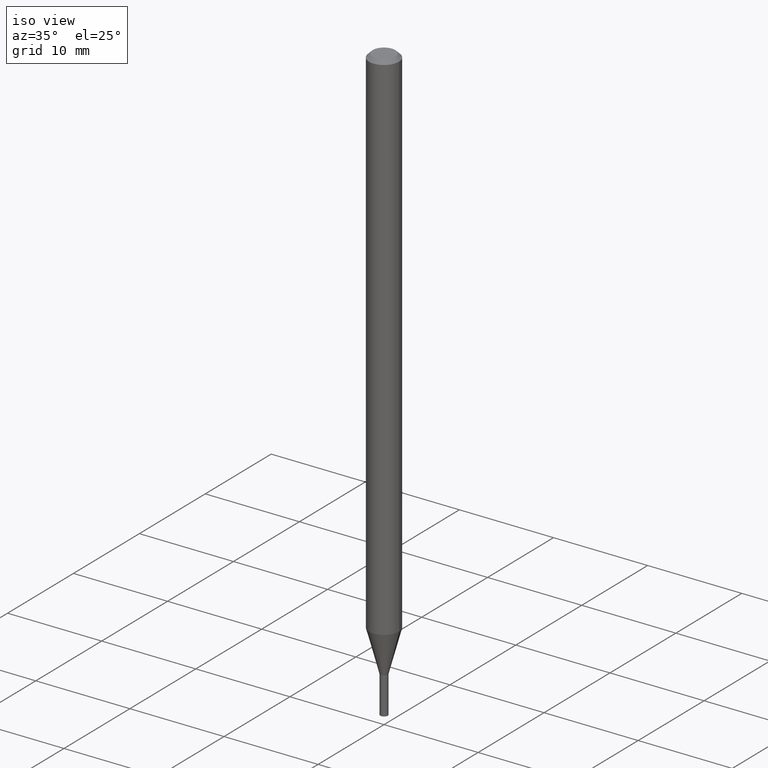
[diagram: clean part render]
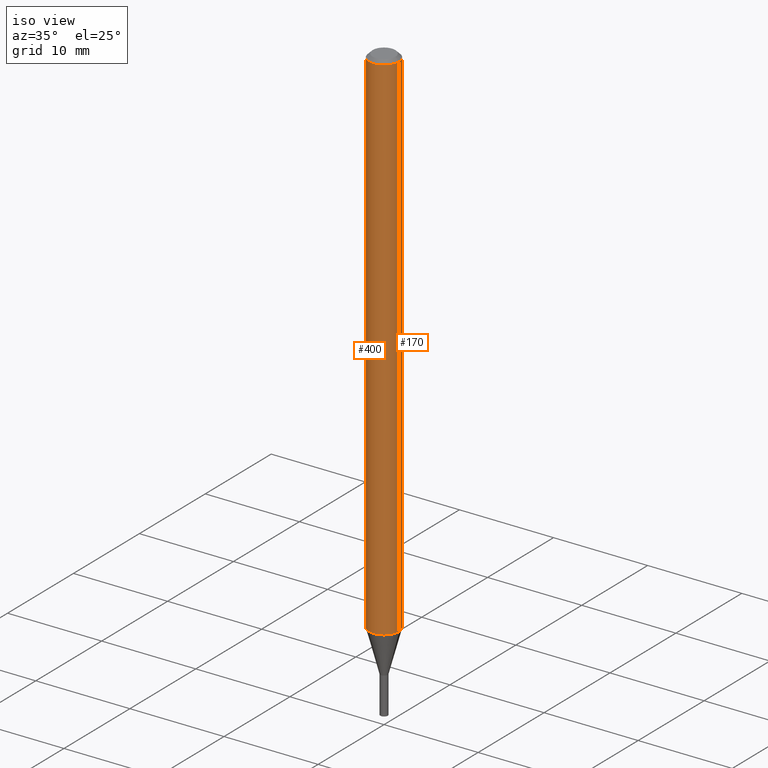
[diagram: same view with one multi-face feature highlighted, each face labeled with its STEP entity id]
A machine part, iso view. The highlighted faces form ONE feature: a constant-radius fillet chain: 2 tangent blend faces with common blend radius 1.5875 mm. The faces share edges in the B-rep.
Their STEP definitions:
[1] entity #400 (Cylinder):
#17 = ORIENTED_EDGE ( 'NONE', *, *, #453, .T. ) ;
#29 = DIRECTION ( 'NONE',  ( -2.445468806185136597E-29, 3.491481338843145583E-15, 1.000000000000000000 ) ) ;
#30 = AXIS2_PLACEMENT_3D ( 'NONE', #171, #29, #359 ) ;
#34 = VERTEX_POINT ( 'NONE', #376 ) ;
#57 = CARTESIAN_POINT ( 'NONE',  ( -0.06250000000000000000, -3.369644704854179855E-15, -0.01499999999999999944 ) ) ;
#61 = LINE ( 'NONE', #429, #74 ) ;
#63 = FACE_OUTER_BOUND ( 'NONE', #106, .T. ) ;
#72 = ORIENTED_EDGE ( 'NONE', *, *, #205, .F. ) ;
#74 = VECTOR ( 'NONE', #129, 39.37007874015748143 ) ;
#98 = EDGE_CURVE ( 'NONE', #184, #34, #350, .T. ) ;
#106 = EDGE_LOOP ( 'NONE', ( #381, #132, #17, #72 ) ) ;
#121 = CIRCLE ( 'NONE', #255, 0.06250000000000000000 ) ;
#129 = DIRECTION ( 'NONE',  ( -2.445468806185136877E-29, 3.491481338843145188E-15, 1.000000000000000000 ) ) ;
#132 = ORIENTED_EDGE ( 'NONE', *, *, #98, .T. ) ;
#134 = AXIS2_PLACEMENT_3D ( 'NONE', #306, #228, #409 ) ;
#171 = CARTESIAN_POINT ( 'NONE',  ( 0.000000000000000000, 0.000000000000000000, 0.000000000000000000 ) ) ;
#184 = VERTEX_POINT ( 'NONE', #268 ) ;
#186 = DIRECTION ( 'NONE',  ( 1.000000000000000000, -6.982962677686266711E-15, 0.000000000000000000 ) ) ;
#205 = EDGE_CURVE ( 'NONE', #288, #411, #121, .T. ) ;
#228 = DIRECTION ( 'NONE',  ( -2.445468806185136597E-29, 3.491481338843145583E-15, 1.000000000000000000 ) ) ;
#234 = VECTOR ( 'NONE', #389, 39.37007874015748143 ) ;
#249 = CYLINDRICAL_SURFACE ( 'NONE', #30, 0.06250000000000000000 ) ;
#255 = AXIS2_PLACEMENT_3D ( 'NONE', #262, #308, #186 ) ;
#262 = CARTESIAN_POINT ( 'NONE',  ( 3.668203209277705088E-31, -5.237222008264718399E-17, -0.01499999999999999944 ) ) ;
#268 = CARTESIAN_POINT ( 'NONE',  ( -0.06249999999999997918, -7.131006399475775641E-15, -2.169593612044262265 ) ) ;
#288 = VERTEX_POINT ( 'NONE', #57 ) ;
#306 = CARTESIAN_POINT ( 'NONE',  ( 5.305673500352780088E-29, -7.575095609325836680E-15, -2.169593612044262265 ) ) ;
#308 = DIRECTION ( 'NONE',  ( -2.445468806185136597E-29, 3.491481338843145583E-15, 1.000000000000000000 ) ) ;
#318 = CARTESIAN_POINT ( 'NONE',  ( 0.06250000000000000000, -4.888073874380388472E-16, -0.01499999999999999944 ) ) ;
#350 = CIRCLE ( 'NONE', #134, 0.06250000000000000000 ) ;
#358 = LINE ( 'NONE', #459, #234 ) ;
#359 = DIRECTION ( 'NONE',  ( 1.000000000000000000, -6.982962677686266711E-15, 4.876176775795935793E-29 ) ) ;
#376 = CARTESIAN_POINT ( 'NONE',  ( 0.06249999999999997918, -8.011530776681228349E-15, -2.169593612044262265 ) ) ;
#381 = ORIENTED_EDGE ( 'NONE', *, *, #462, .F. ) ;
#389 = DIRECTION ( 'NONE',  ( -2.445468806185136877E-29, 3.491481338843145188E-15, 1.000000000000000000 ) ) ;
#400 = ADVANCED_FACE ( 'NONE', ( #63 ), #249, .T. ) ;
#409 = DIRECTION ( 'NONE',  ( 1.000000000000000000, -6.982962677686262766E-15, 0.000000000000000000 ) ) ;
#411 = VERTEX_POINT ( 'NONE', #318 ) ;
#429 = CARTESIAN_POINT ( 'NONE',  ( 0.06250000000000000000, -4.364351673553916694E-16, 3.047610484872459871E-30 ) ) ;
#453 = EDGE_CURVE ( 'NONE', #34, #411, #61, .T. ) ;
#459 = CARTESIAN_POINT ( 'NONE',  ( -0.06250000000000000000, 4.440892098500626162E-16, -3.074334431409316114E-30 ) ) ;
#462 = EDGE_CURVE ( 'NONE', #184, #288, #358, .T. ) ;
[2] entity #170 (Cylinder):
#34 = VERTEX_POINT ( 'NONE', #376 ) ;
#57 = CARTESIAN_POINT ( 'NONE',  ( -0.06250000000000000000, -3.369644704854179855E-15, -0.01499999999999999944 ) ) ;
#61 = LINE ( 'NONE', #429, #74 ) ;
#62 = EDGE_CURVE ( 'NONE', #34, #184, #325, .T. ) ;
#74 = VECTOR ( 'NONE', #129, 39.37007874015748143 ) ;
#103 = EDGE_LOOP ( 'NONE', ( #365, #152, #347, #236 ) ) ;
#113 = DIRECTION ( 'NONE',  ( 1.000000000000000000, -6.982962677686262766E-15, 0.000000000000000000 ) ) ;
#129 = DIRECTION ( 'NONE',  ( -2.445468806185136877E-29, 3.491481338843145188E-15, 1.000000000000000000 ) ) ;
#150 = CARTESIAN_POINT ( 'NONE',  ( 3.668203209277705088E-31, -5.237222008264718399E-17, -0.01499999999999999944 ) ) ;
#151 = DIRECTION ( 'NONE',  ( -2.445468806185136597E-29, 3.491481338843145583E-15, 1.000000000000000000 ) ) ;
#152 = ORIENTED_EDGE ( 'NONE', *, *, #462, .T. ) ;
#156 = DIRECTION ( 'NONE',  ( 1.000000000000000000, -6.982962677686266711E-15, 4.876176775795935793E-29 ) ) ;
#170 = ADVANCED_FACE ( 'NONE', ( #189 ), #446, .T. ) ;
#184 = VERTEX_POINT ( 'NONE', #268 ) ;
#189 = FACE_OUTER_BOUND ( 'NONE', #103, .T. ) ;
#194 = CIRCLE ( 'NONE', #207, 0.06250000000000000000 ) ;
#207 = AXIS2_PLACEMENT_3D ( 'NONE', #150, #414, #445 ) ;
#231 = CARTESIAN_POINT ( 'NONE',  ( 0.000000000000000000, 0.000000000000000000, 0.000000000000000000 ) ) ;
#234 = VECTOR ( 'NONE', #389, 39.37007874015748143 ) ;
#236 = ORIENTED_EDGE ( 'NONE', *, *, #453, .F. ) ;
#268 = CARTESIAN_POINT ( 'NONE',  ( -0.06249999999999997918, -7.131006399475775641E-15, -2.169593612044262265 ) ) ;
#269 = CARTESIAN_POINT ( 'NONE',  ( 5.305673500352780088E-29, -7.575095609325836680E-15, -2.169593612044262265 ) ) ;
#282 = AXIS2_PLACEMENT_3D ( 'NONE', #269, #416, #113 ) ;
#288 = VERTEX_POINT ( 'NONE', #57 ) ;
#314 = EDGE_CURVE ( 'NONE', #411, #288, #194, .T. ) ;
#318 = CARTESIAN_POINT ( 'NONE',  ( 0.06250000000000000000, -4.888073874380388472E-16, -0.01499999999999999944 ) ) ;
#325 = CIRCLE ( 'NONE', #282, 0.06250000000000000000 ) ;
#347 = ORIENTED_EDGE ( 'NONE', *, *, #314, .F. ) ;
#351 = AXIS2_PLACEMENT_3D ( 'NONE', #231, #151, #156 ) ;
#358 = LINE ( 'NONE', #459, #234 ) ;
#365 = ORIENTED_EDGE ( 'NONE', *, *, #62, .T. ) ;
#376 = CARTESIAN_POINT ( 'NONE',  ( 0.06249999999999997918, -8.011530776681228349E-15, -2.169593612044262265 ) ) ;
#389 = DIRECTION ( 'NONE',  ( -2.445468806185136877E-29, 3.491481338843145188E-15, 1.000000000000000000 ) ) ;
#411 = VERTEX_POINT ( 'NONE', #318 ) ;
#414 = DIRECTION ( 'NONE',  ( -2.445468806185136597E-29, 3.491481338843145583E-15, 1.000000000000000000 ) ) ;
#416 = DIRECTION ( 'NONE',  ( -2.445468806185136597E-29, 3.491481338843145583E-15, 1.000000000000000000 ) ) ;
#429 = CARTESIAN_POINT ( 'NONE',  ( 0.06250000000000000000, -4.364351673553916694E-16, 3.047610484872459871E-30 ) ) ;
#445 = DIRECTION ( 'NONE',  ( 1.000000000000000000, -6.982962677686266711E-15, 0.000000000000000000 ) ) ;
#446 = CYLINDRICAL_SURFACE ( 'NONE', #351, 0.06250000000000000000 ) ;
#453 = EDGE_CURVE ( 'NONE', #34, #411, #61, .T. ) ;
#459 = CARTESIAN_POINT ( 'NONE',  ( -0.06250000000000000000, 4.440892098500626162E-16, -3.074334431409316114E-30 ) ) ;
#462 = EDGE_CURVE ( 'NONE', #184, #288, #358, .T. ) ;